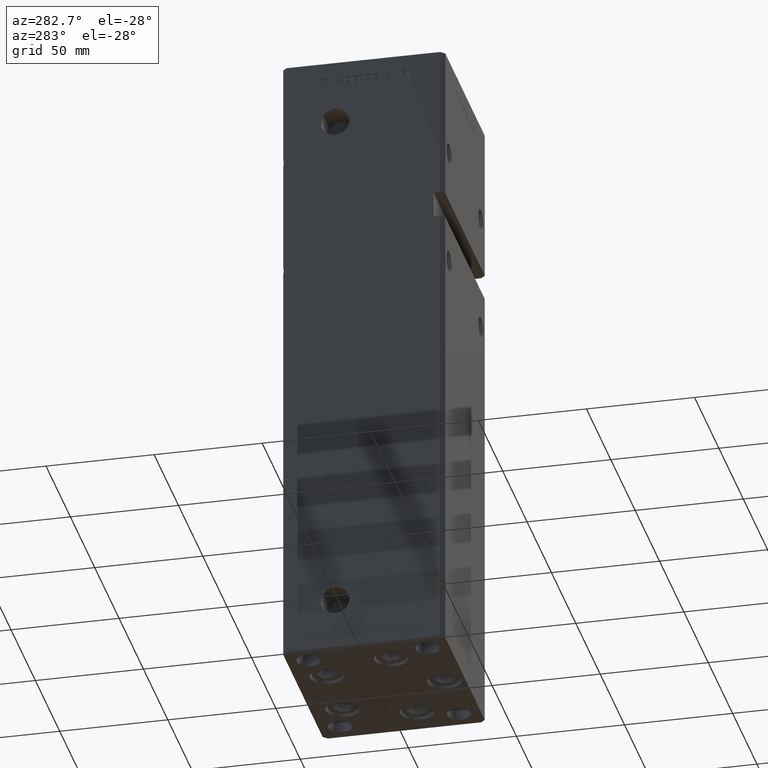
[diagram: clean part render]
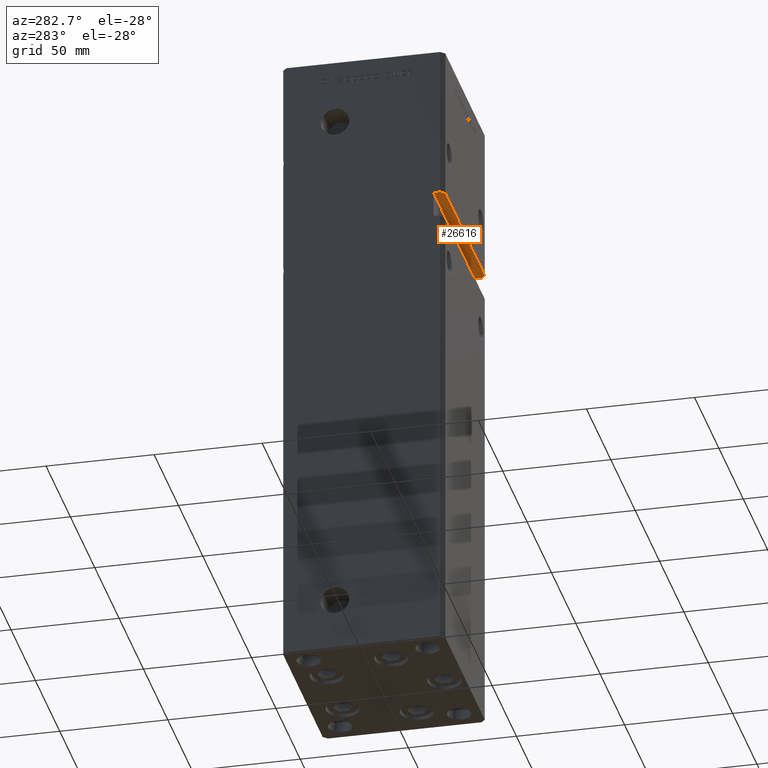
[diagram: same view with one face highlighted and labeled with its STEP entity id]
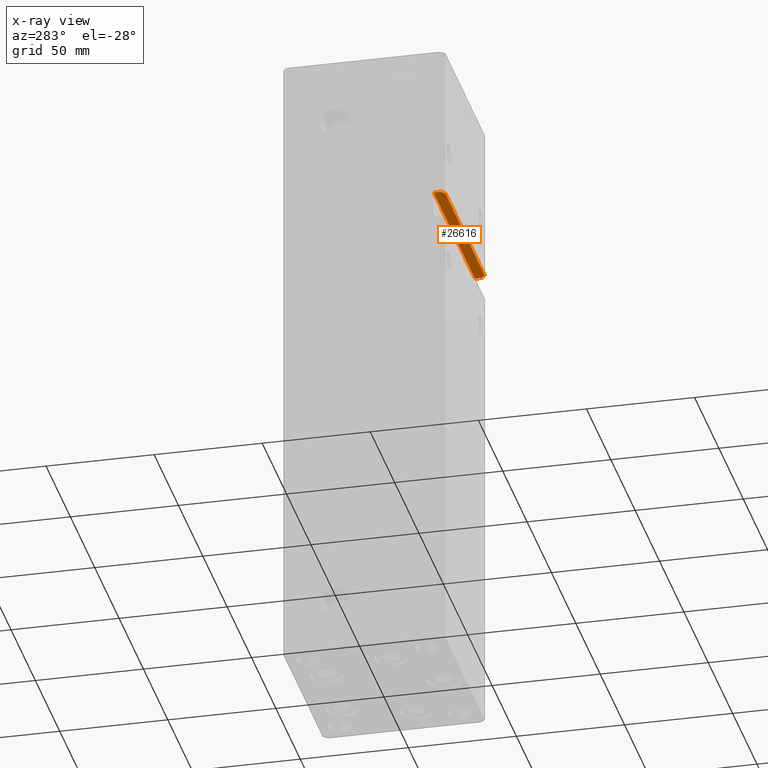
[diagram: x-ray of the same camera — body ghosted, the highlighted face saturated]
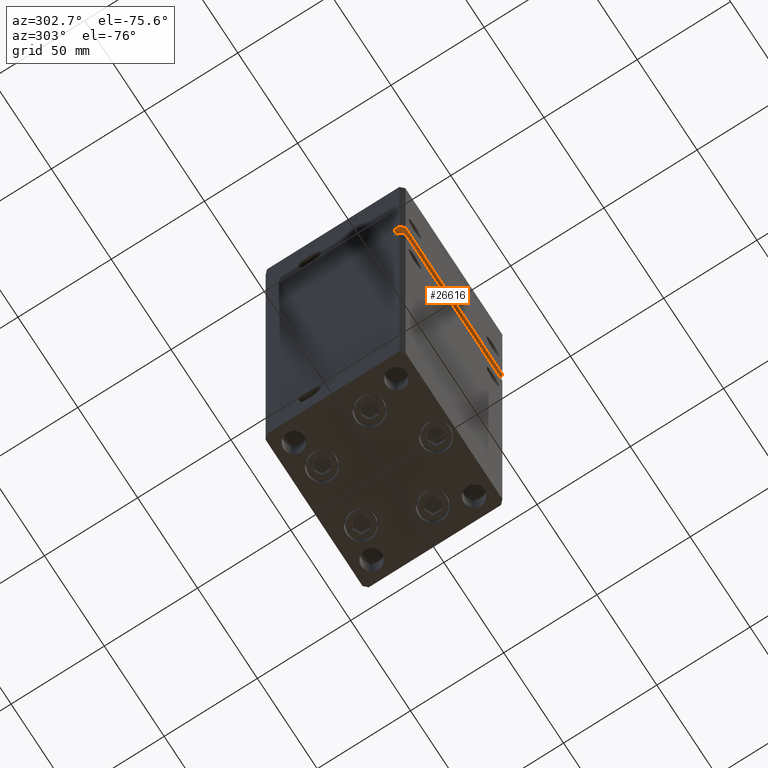
[diagram: same view with one face highlighted and labeled with its STEP entity id]
A machine part, auxiliary view. The second image highlights one B-rep face of the part: STEP entity #26616.
The next image is the same camera in x-ray: the body ghosted, the highlighted face saturated — about 0% of this face is hidden behind the body in this view.
A second angle (auxiliary view) of the same face is appended — the face is thin or edge-on in the first view.
In plain terms, the highlighted planar face has unit normal (0, 0, 1).
Its self-contained STEP definition (entity closure, byte-faithful):
#2217 = EDGE_CURVE ( 'NONE', #35192, #30359, #36617, .T. ) ;
#3458 = ORIENTED_EDGE ( 'NONE', *, *, #49173, .T. ) ;
#3760 = DIRECTION ( 'NONE',  ( -1.000000000000000000, -0.000000000000000000, -0.000000000000000000 ) ) ;
#3989 = AXIS2_PLACEMENT_3D ( 'NONE', #21078, #12988, #29913 ) ;
#4298 = LINE ( 'NONE', #37608, #46814 ) ;
#4649 = PLANE ( 'NONE',  #3989 ) ;
#5095 = VERTEX_POINT ( 'NONE', #31399 ) ;
#11253 = CARTESIAN_POINT ( 'NONE',  ( -42.49999999999998579, -35.50000000000001421, 212.0000000000000284 ) ) ;
#11413 = DIRECTION ( 'NONE',  ( -0.7071067811865474617, -0.7071067811865474617, 0.000000000000000000 ) ) ;
#11790 = VERTEX_POINT ( 'NONE', #47848 ) ;
#12988 = DIRECTION ( 'NONE',  ( 0.000000000000000000, 0.000000000000000000, 1.000000000000000000 ) ) ;
#13525 = FACE_OUTER_BOUND ( 'NONE', #43779, .T. ) ;
#16705 = VECTOR ( 'NONE', #53022, 1000.000000000000000 ) ;
#17204 = EDGE_CURVE ( 'NONE', #30359, #29054, #42462, .T. ) ;
#21078 = CARTESIAN_POINT ( 'NONE',  ( -42.49999999999998579, -32.50000000000000711, 212.0000000000000284 ) ) ;
#21176 = ORIENTED_EDGE ( 'NONE', *, *, #17204, .F. ) ;
#24323 = EDGE_CURVE ( 'NONE', #50651, #29054, #4298, .T. ) ;
#26616 = ADVANCED_FACE ( 'NONE', ( #13525 ), #4649, .F. ) ;
#27278 = EDGE_CURVE ( 'NONE', #5095, #50651, #40441, .T. ) ;
#27770 = CARTESIAN_POINT ( 'NONE',  ( -40.49999999999998579, -37.50000000000000711, 212.0000000000000284 ) ) ;
#28612 = CARTESIAN_POINT ( 'NONE',  ( 42.49999999999998579, -35.50000000000000711, 212.0000000000000284 ) ) ;
#28624 = VECTOR ( 'NONE', #29327, 1000.000000000000114 ) ;
#29054 = VERTEX_POINT ( 'NONE', #27770 ) ;
#29327 = DIRECTION ( 'NONE',  ( 0.7071067811865474617, -0.7071067811865474617, 0.000000000000000000 ) ) ;
#29913 = DIRECTION ( 'NONE',  ( 1.000000000000000000, 0.000000000000000000, -0.000000000000000000 ) ) ;
#30359 = VERTEX_POINT ( 'NONE', #11253 ) ;
#30799 = CARTESIAN_POINT ( 'NONE',  ( -42.49999999999998579, -32.50000000000000711, 212.0000000000000284 ) ) ;
#31399 = CARTESIAN_POINT ( 'NONE',  ( 42.49999999999998579, -35.50000000000000711, 212.0000000000000284 ) ) ;
#31604 = CARTESIAN_POINT ( 'NONE',  ( -42.49999999999998579, -32.50000000000000711, 212.0000000000000284 ) ) ;
#33585 = ORIENTED_EDGE ( 'NONE', *, *, #34068, .F. ) ;
#33606 = CARTESIAN_POINT ( 'NONE',  ( -42.49999999999998579, -35.50000000000000711, 212.0000000000000284 ) ) ;
#34068 = EDGE_CURVE ( 'NONE', #11790, #35192, #44481, .T. ) ;
#35192 = VERTEX_POINT ( 'NONE', #30799 ) ;
#35714 = CARTESIAN_POINT ( 'NONE',  ( 40.49999999999997868, -37.50000000000000711, 212.0000000000000284 ) ) ;
#36617 = LINE ( 'NONE', #40131, #16705 ) ;
#36637 = VECTOR ( 'NONE', #11413, 1000.000000000000114 ) ;
#37608 = CARTESIAN_POINT ( 'NONE',  ( -42.49999999999998579, -37.50000000000000711, 212.0000000000000284 ) ) ;
#39929 = DIRECTION ( 'NONE',  ( -1.000000000000000000, -0.000000000000000000, -0.000000000000000000 ) ) ;
#40131 = CARTESIAN_POINT ( 'NONE',  ( -42.49999999999998579, -32.50000000000000711, 212.0000000000000284 ) ) ;
#40172 = VECTOR ( 'NONE', #39929, 1000.000000000000000 ) ;
#40441 = LINE ( 'NONE', #28612, #36637 ) ;
#40740 = VECTOR ( 'NONE', #50096, 1000.000000000000000 ) ;
#41861 = ORIENTED_EDGE ( 'NONE', *, *, #2217, .F. ) ;
#42462 = LINE ( 'NONE', #33606, #28624 ) ;
#43094 = LINE ( 'NONE', #51171, #40740 ) ;
#43779 = EDGE_LOOP ( 'NONE', ( #41861, #33585, #3458, #45046, #53181, #21176 ) ) ;
#44481 = LINE ( 'NONE', #31604, #40172 ) ;
#45046 = ORIENTED_EDGE ( 'NONE', *, *, #27278, .T. ) ;
#46814 = VECTOR ( 'NONE', #3760, 1000.000000000000000 ) ;
#47848 = CARTESIAN_POINT ( 'NONE',  ( 42.49999999999998579, -32.50000000000000711, 212.0000000000000284 ) ) ;
#49173 = EDGE_CURVE ( 'NONE', #11790, #5095, #43094, .T. ) ;
#50096 = DIRECTION ( 'NONE',  ( -0.000000000000000000, -1.000000000000000000, -0.000000000000000000 ) ) ;
#50651 = VERTEX_POINT ( 'NONE', #35714 ) ;
#51171 = CARTESIAN_POINT ( 'NONE',  ( 42.49999999999998579, -32.50000000000000711, 212.0000000000000284 ) ) ;
#53022 = DIRECTION ( 'NONE',  ( -0.000000000000000000, -1.000000000000000000, -0.000000000000000000 ) ) ;
#53181 = ORIENTED_EDGE ( 'NONE', *, *, #24323, .T. ) ;